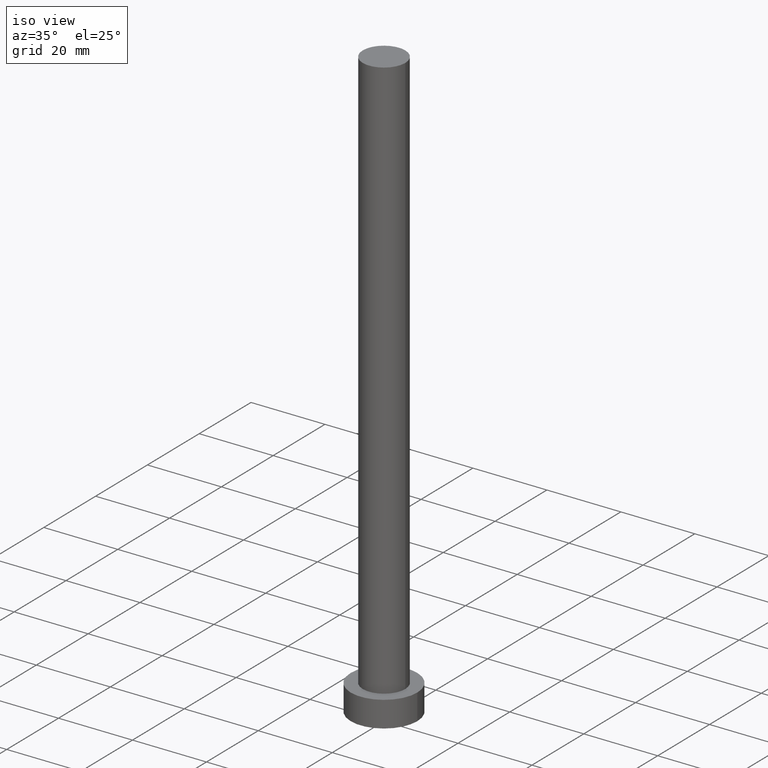
[diagram: clean part render]
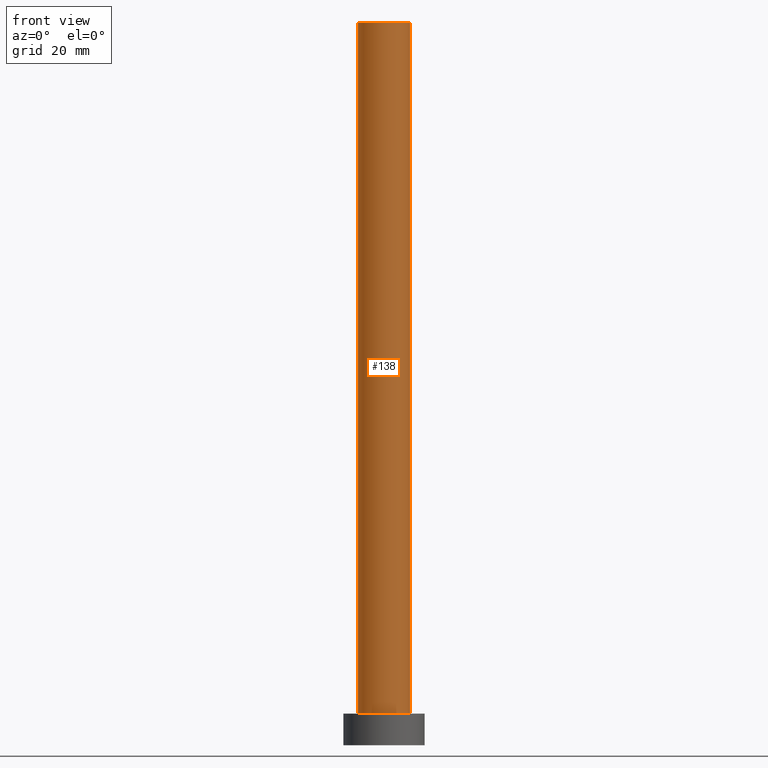
[diagram: tour spotlight — one face highlighted and labeled with its STEP entity id]
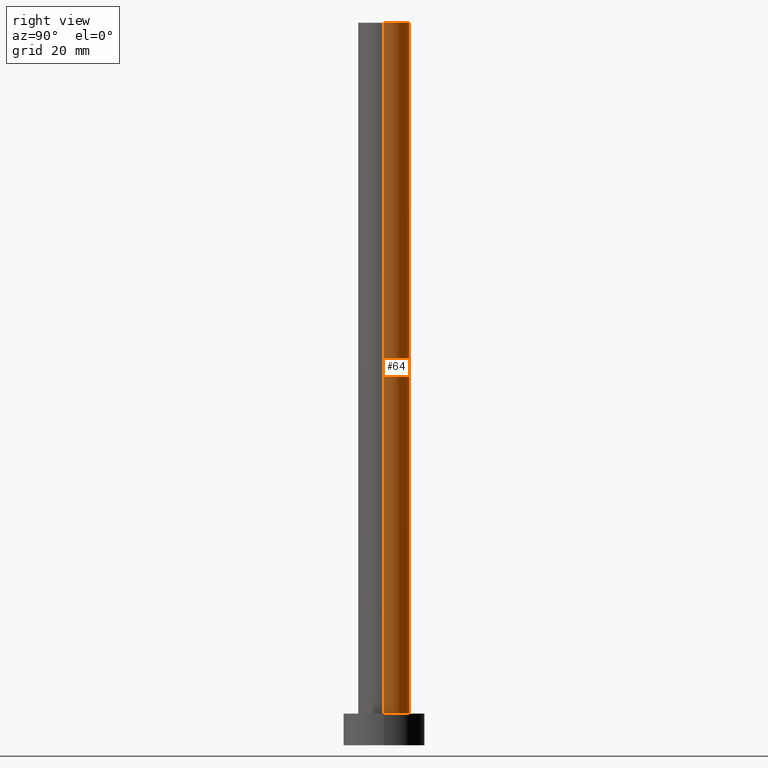
[diagram: tour spotlight — one face highlighted and labeled with its STEP entity id]
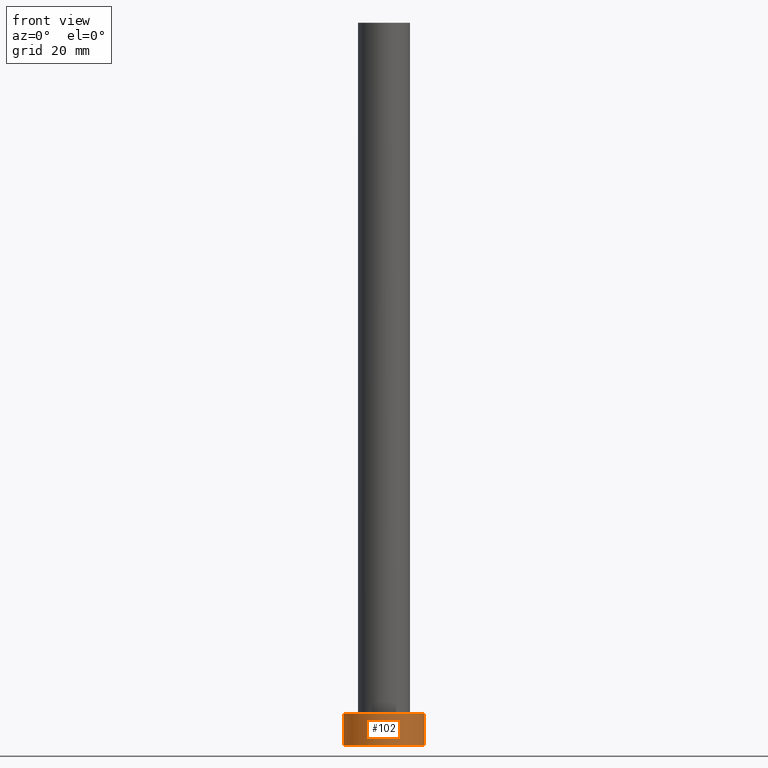
[diagram: tour spotlight — one face highlighted and labeled with its STEP entity id]
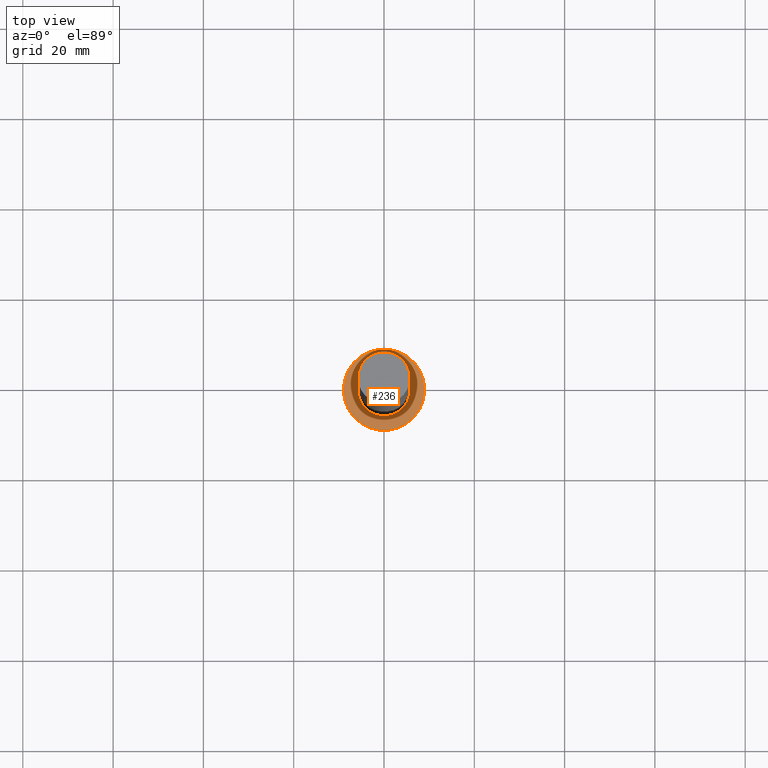
[diagram: tour spotlight — one face highlighted and labeled with its STEP entity id]
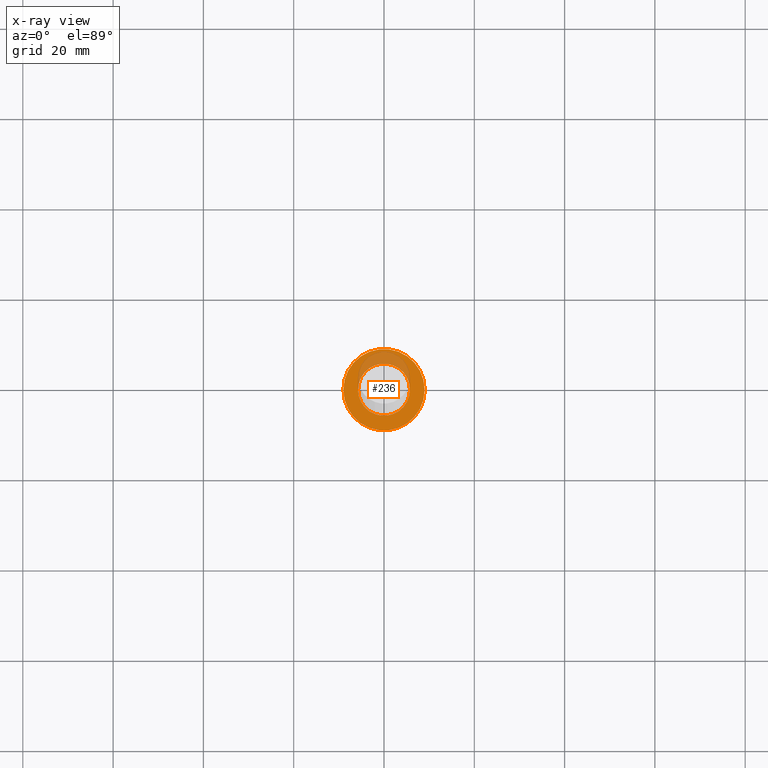
[diagram: x-ray of the same camera — body ghosted, this tour face saturated]
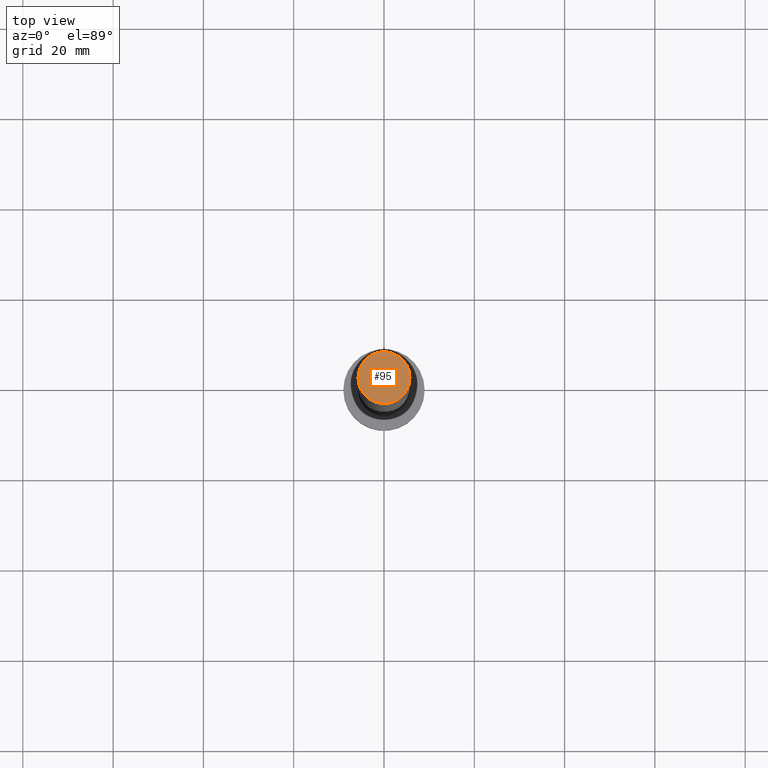
[diagram: tour spotlight — one face highlighted and labeled with its STEP entity id]
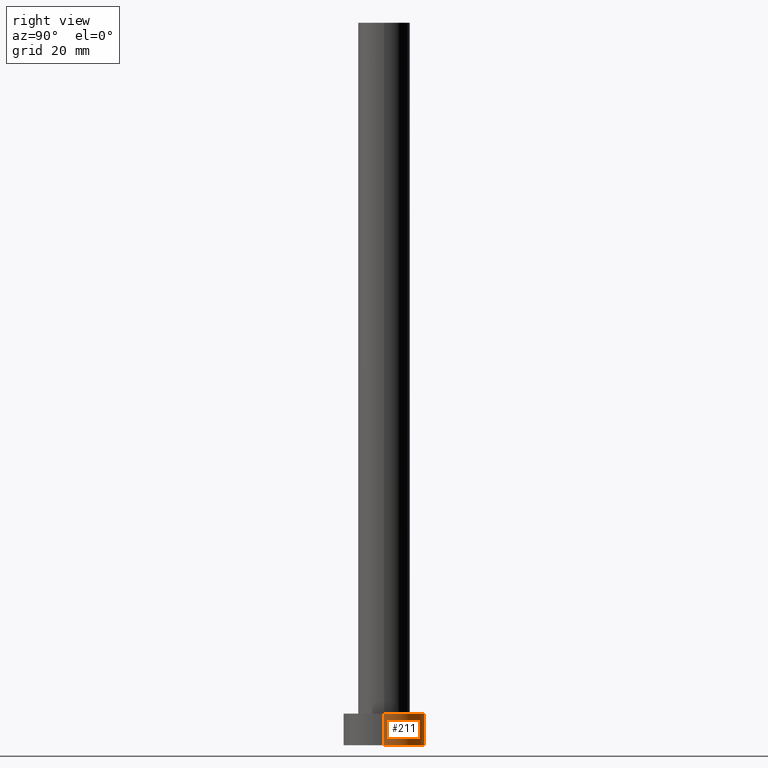
[diagram: tour spotlight — one face highlighted and labeled with its STEP entity id]
A machine part: a face-by-face anatomy tour. The part has 7 B-rep faces; the first image is the clean iso view, then the 6 largest visible faces are spotlighted one at a time (largest first), each with its STEP entity span.

Face 1 — front view, entity #138. In plain terms, the highlighted cylindrical surface (edge-blend (fillet) strip) has radius 5.75 mm, axis along (-0, -0, -1).
Definition (entity closure, byte-faithful):
#26 = EDGE_CURVE ( 'NONE', #112, #173, #100, .T. ) ;
#29 = CIRCLE ( 'NONE', #241, 5.750000000000000000 ) ;
#31 = CARTESIAN_POINT ( 'NONE',  ( 5.750000000000000000, 7.041719095097280880E-16, 7.000000000000000000 ) ) ;
#35 = CARTESIAN_POINT ( 'NONE',  ( -5.750000000000000000, 0.000000000000000000, 7.000000000000000000 ) ) ;
#37 = CARTESIAN_POINT ( 'NONE',  ( 5.750000000000000000, 7.041719095097280880E-16, 160.0000000000000000 ) ) ;
#40 = DIRECTION ( 'NONE',  ( 1.000000000000000000, 0.000000000000000000, 0.000000000000000000 ) ) ;
#43 = ORIENTED_EDGE ( 'NONE', *, *, #197, .F. ) ;
#55 = VECTOR ( 'NONE', #77, 1000.000000000000000 ) ;
#58 = VECTOR ( 'NONE', #145, 1000.000000000000000 ) ;
#71 = LINE ( 'NONE', #37, #58 ) ;
#77 = DIRECTION ( 'NONE',  ( -0.000000000000000000, -0.000000000000000000, -1.000000000000000000 ) ) ;
#79 = CYLINDRICAL_SURFACE ( 'NONE', #104, 5.750000000000000000 ) ;
#96 = CARTESIAN_POINT ( 'NONE',  ( -5.750000000000000000, 0.000000000000000000, 160.0000000000000000 ) ) ;
#100 = CIRCLE ( 'NONE', #220, 5.750000000000000000 ) ;
#104 = AXIS2_PLACEMENT_3D ( 'NONE', #229, #133, #206 ) ;
#108 = DIRECTION ( 'NONE',  ( 1.000000000000000000, 0.000000000000000000, 0.000000000000000000 ) ) ;
#112 = VERTEX_POINT ( 'NONE', #35 ) ;
#115 = FACE_OUTER_BOUND ( 'NONE', #140, .T. ) ;
#131 = DIRECTION ( 'NONE',  ( 0.000000000000000000, 0.000000000000000000, 1.000000000000000000 ) ) ;
#133 = DIRECTION ( 'NONE',  ( -0.000000000000000000, -0.000000000000000000, -1.000000000000000000 ) ) ;
#135 = VERTEX_POINT ( 'NONE', #96 ) ;
#136 = EDGE_CURVE ( 'NONE', #135, #112, #166, .T. ) ;
#138 = ADVANCED_FACE ( 'NONE', ( #115 ), #79, .T. ) ;
#140 = EDGE_LOOP ( 'NONE', ( #43, #159, #196, #141 ) ) ;
#141 = ORIENTED_EDGE ( 'NONE', *, *, #26, .T. ) ;
#145 = DIRECTION ( 'NONE',  ( -0.000000000000000000, -0.000000000000000000, -1.000000000000000000 ) ) ;
#147 = CARTESIAN_POINT ( 'NONE',  ( 0.000000000000000000, 0.000000000000000000, 160.0000000000000000 ) ) ;
#159 = ORIENTED_EDGE ( 'NONE', *, *, #187, .F. ) ;
#166 = LINE ( 'NONE', #253, #55 ) ;
#173 = VERTEX_POINT ( 'NONE', #31 ) ;
#181 = DIRECTION ( 'NONE',  ( 0.000000000000000000, 0.000000000000000000, 1.000000000000000000 ) ) ;
#187 = EDGE_CURVE ( 'NONE', #135, #233, #29, .T. ) ;
#196 = ORIENTED_EDGE ( 'NONE', *, *, #136, .T. ) ;
#197 = EDGE_CURVE ( 'NONE', #233, #173, #71, .T. ) ;
#206 = DIRECTION ( 'NONE',  ( -1.000000000000000000, 0.000000000000000000, 0.000000000000000000 ) ) ;
#220 = AXIS2_PLACEMENT_3D ( 'NONE', #228, #131, #40 ) ;
#228 = CARTESIAN_POINT ( 'NONE',  ( 0.000000000000000000, 0.000000000000000000, 7.000000000000000000 ) ) ;
#229 = CARTESIAN_POINT ( 'NONE',  ( 0.000000000000000000, 0.000000000000000000, 160.0000000000000000 ) ) ;
#231 = CARTESIAN_POINT ( 'NONE',  ( 5.750000000000000000, 7.041719095097280880E-16, 160.0000000000000000 ) ) ;
#233 = VERTEX_POINT ( 'NONE', #231 ) ;
#241 = AXIS2_PLACEMENT_3D ( 'NONE', #147, #181, #108 ) ;
#253 = CARTESIAN_POINT ( 'NONE',  ( -5.750000000000000000, 0.000000000000000000, 160.0000000000000000 ) ) ;

Face 2 — right view, entity #64. In plain terms, the highlighted cylindrical surface (edge-blend (fillet) strip) has radius 5.75 mm, axis along (-0, -0, -1).
Definition (entity closure, byte-faithful):
#2 = DIRECTION ( 'NONE',  ( 1.000000000000000000, 0.000000000000000000, 0.000000000000000000 ) ) ;
#3 = DIRECTION ( 'NONE',  ( 1.000000000000000000, 0.000000000000000000, 0.000000000000000000 ) ) ;
#21 = DIRECTION ( 'NONE',  ( 0.000000000000000000, 0.000000000000000000, 1.000000000000000000 ) ) ;
#31 = CARTESIAN_POINT ( 'NONE',  ( 5.750000000000000000, 7.041719095097280880E-16, 7.000000000000000000 ) ) ;
#35 = CARTESIAN_POINT ( 'NONE',  ( -5.750000000000000000, 0.000000000000000000, 7.000000000000000000 ) ) ;
#37 = CARTESIAN_POINT ( 'NONE',  ( 5.750000000000000000, 7.041719095097280880E-16, 160.0000000000000000 ) ) ;
#38 = CARTESIAN_POINT ( 'NONE',  ( 0.000000000000000000, 0.000000000000000000, 7.000000000000000000 ) ) ;
#39 = AXIS2_PLACEMENT_3D ( 'NONE', #110, #48, #180 ) ;
#48 = DIRECTION ( 'NONE',  ( -0.000000000000000000, -0.000000000000000000, -1.000000000000000000 ) ) ;
#55 = VECTOR ( 'NONE', #77, 1000.000000000000000 ) ;
#58 = VECTOR ( 'NONE', #145, 1000.000000000000000 ) ;
#59 = FACE_OUTER_BOUND ( 'NONE', #105, .T. ) ;
#64 = ADVANCED_FACE ( 'NONE', ( #59 ), #210, .T. ) ;
#71 = LINE ( 'NONE', #37, #58 ) ;
#77 = DIRECTION ( 'NONE',  ( -0.000000000000000000, -0.000000000000000000, -1.000000000000000000 ) ) ;
#82 = CARTESIAN_POINT ( 'NONE',  ( 0.000000000000000000, 0.000000000000000000, 160.0000000000000000 ) ) ;
#83 = ORIENTED_EDGE ( 'NONE', *, *, #136, .F. ) ;
#96 = CARTESIAN_POINT ( 'NONE',  ( -5.750000000000000000, 0.000000000000000000, 160.0000000000000000 ) ) ;
#105 = EDGE_LOOP ( 'NONE', ( #123, #191, #218, #83 ) ) ;
#110 = CARTESIAN_POINT ( 'NONE',  ( 0.000000000000000000, 0.000000000000000000, 160.0000000000000000 ) ) ;
#112 = VERTEX_POINT ( 'NONE', #35 ) ;
#117 = DIRECTION ( 'NONE',  ( 0.000000000000000000, 0.000000000000000000, 1.000000000000000000 ) ) ;
#123 = ORIENTED_EDGE ( 'NONE', *, *, #222, .F. ) ;
#130 = AXIS2_PLACEMENT_3D ( 'NONE', #82, #21, #2 ) ;
#134 = AXIS2_PLACEMENT_3D ( 'NONE', #38, #117, #3 ) ;
#135 = VERTEX_POINT ( 'NONE', #96 ) ;
#136 = EDGE_CURVE ( 'NONE', #135, #112, #166, .T. ) ;
#143 = EDGE_CURVE ( 'NONE', #173, #112, #214, .T. ) ;
#145 = DIRECTION ( 'NONE',  ( -0.000000000000000000, -0.000000000000000000, -1.000000000000000000 ) ) ;
#166 = LINE ( 'NONE', #253, #55 ) ;
#173 = VERTEX_POINT ( 'NONE', #31 ) ;
#180 = DIRECTION ( 'NONE',  ( -1.000000000000000000, 0.000000000000000000, 0.000000000000000000 ) ) ;
#191 = ORIENTED_EDGE ( 'NONE', *, *, #197, .T. ) ;
#197 = EDGE_CURVE ( 'NONE', #233, #173, #71, .T. ) ;
#210 = CYLINDRICAL_SURFACE ( 'NONE', #39, 5.750000000000000000 ) ;
#214 = CIRCLE ( 'NONE', #134, 5.750000000000000000 ) ;
#218 = ORIENTED_EDGE ( 'NONE', *, *, #143, .T. ) ;
#222 = EDGE_CURVE ( 'NONE', #233, #135, #245, .T. ) ;
#231 = CARTESIAN_POINT ( 'NONE',  ( 5.750000000000000000, 7.041719095097280880E-16, 160.0000000000000000 ) ) ;
#233 = VERTEX_POINT ( 'NONE', #231 ) ;
#245 = CIRCLE ( 'NONE', #130, 5.750000000000000000 ) ;
#253 = CARTESIAN_POINT ( 'NONE',  ( -5.750000000000000000, 0.000000000000000000, 160.0000000000000000 ) ) ;

Face 3 — front view, entity #102. In plain terms, the highlighted cylindrical surface (partial cylindrical patch) has radius 9 mm, axis along (-0, -0, -1).
Definition (entity closure, byte-faithful):
#12 = ORIENTED_EDGE ( 'NONE', *, *, #189, .F. ) ;
#19 = CYLINDRICAL_SURFACE ( 'NONE', #188, 9.000000000000000000 ) ;
#22 = DIRECTION ( 'NONE',  ( -1.000000000000000000, 0.000000000000000000, 0.000000000000000000 ) ) ;
#33 = FACE_OUTER_BOUND ( 'NONE', #246, .T. ) ;
#36 = DIRECTION ( 'NONE',  ( 0.000000000000000000, 0.000000000000000000, 1.000000000000000000 ) ) ;
#41 = DIRECTION ( 'NONE',  ( 1.000000000000000000, 0.000000000000000000, 0.000000000000000000 ) ) ;
#44 = CIRCLE ( 'NONE', #169, 9.000000000000000000 ) ;
#45 = EDGE_CURVE ( 'NONE', #174, #107, #192, .T. ) ;
#57 = CARTESIAN_POINT ( 'NONE',  ( 9.000000000000000000, 1.102182119232617714E-15, 0.000000000000000000 ) ) ;
#62 = LINE ( 'NONE', #125, #94 ) ;
#63 = DIRECTION ( 'NONE',  ( -0.000000000000000000, -0.000000000000000000, -1.000000000000000000 ) ) ;
#66 = CARTESIAN_POINT ( 'NONE',  ( 0.000000000000000000, 0.000000000000000000, 0.000000000000000000 ) ) ;
#67 = VERTEX_POINT ( 'NONE', #57 ) ;
#69 = VECTOR ( 'NONE', #213, 1000.000000000000000 ) ;
#78 = DIRECTION ( 'NONE',  ( -0.000000000000000000, -0.000000000000000000, -1.000000000000000000 ) ) ;
#92 = LINE ( 'NONE', #200, #69 ) ;
#94 = VECTOR ( 'NONE', #78, 1000.000000000000000 ) ;
#97 = CARTESIAN_POINT ( 'NONE',  ( 0.000000000000000000, 0.000000000000000000, 7.000000000000000000 ) ) ;
#101 = VERTEX_POINT ( 'NONE', #225 ) ;
#102 = ADVANCED_FACE ( 'NONE', ( #33 ), #19, .T. ) ;
#107 = VERTEX_POINT ( 'NONE', #255 ) ;
#116 = DIRECTION ( 'NONE',  ( 1.000000000000000000, 0.000000000000000000, 0.000000000000000000 ) ) ;
#119 = ORIENTED_EDGE ( 'NONE', *, *, #45, .F. ) ;
#125 = CARTESIAN_POINT ( 'NONE',  ( -9.000000000000000000, 0.000000000000000000, 7.000000000000000000 ) ) ;
#150 = CARTESIAN_POINT ( 'NONE',  ( -9.000000000000000000, 0.000000000000000000, 7.000000000000000000 ) ) ;
#169 = AXIS2_PLACEMENT_3D ( 'NONE', #66, #216, #41 ) ;
#174 = VERTEX_POINT ( 'NONE', #150 ) ;
#182 = EDGE_CURVE ( 'NONE', #174, #101, #62, .T. ) ;
#188 = AXIS2_PLACEMENT_3D ( 'NONE', #97, #63, #22 ) ;
#189 = EDGE_CURVE ( 'NONE', #107, #67, #92, .T. ) ;
#192 = CIRCLE ( 'NONE', #251, 9.000000000000000000 ) ;
#200 = CARTESIAN_POINT ( 'NONE',  ( 9.000000000000000000, 1.102182119232617714E-15, 7.000000000000000000 ) ) ;
#208 = EDGE_CURVE ( 'NONE', #101, #67, #44, .T. ) ;
#212 = CARTESIAN_POINT ( 'NONE',  ( 0.000000000000000000, 0.000000000000000000, 7.000000000000000000 ) ) ;
#213 = DIRECTION ( 'NONE',  ( -0.000000000000000000, -0.000000000000000000, -1.000000000000000000 ) ) ;
#216 = DIRECTION ( 'NONE',  ( 0.000000000000000000, 0.000000000000000000, 1.000000000000000000 ) ) ;
#225 = CARTESIAN_POINT ( 'NONE',  ( -9.000000000000000000, 0.000000000000000000, 0.000000000000000000 ) ) ;
#237 = ORIENTED_EDGE ( 'NONE', *, *, #208, .T. ) ;
#239 = ORIENTED_EDGE ( 'NONE', *, *, #182, .T. ) ;
#246 = EDGE_LOOP ( 'NONE', ( #12, #119, #239, #237 ) ) ;
#251 = AXIS2_PLACEMENT_3D ( 'NONE', #212, #36, #116 ) ;
#255 = CARTESIAN_POINT ( 'NONE',  ( 9.000000000000000000, 1.102182119232617714E-15, 7.000000000000000000 ) ) ;

Face 4 — top view, entity #236. An x-ray twin of the same camera follows (body ghosted, this face saturated) — the face is partly hidden behind the body. In plain terms, the highlighted planar face has unit normal (0, 0, 1).
Definition (entity closure, byte-faithful):
#1 = AXIS2_PLACEMENT_3D ( 'NONE', #76, #230, #186 ) ;
#3 = DIRECTION ( 'NONE',  ( 1.000000000000000000, 0.000000000000000000, 0.000000000000000000 ) ) ;
#4 = EDGE_LOOP ( 'NONE', ( #122, #171 ) ) ;
#10 = EDGE_CURVE ( 'NONE', #107, #174, #178, .T. ) ;
#25 = FACE_OUTER_BOUND ( 'NONE', #242, .T. ) ;
#26 = EDGE_CURVE ( 'NONE', #112, #173, #100, .T. ) ;
#31 = CARTESIAN_POINT ( 'NONE',  ( 5.750000000000000000, 7.041719095097280880E-16, 7.000000000000000000 ) ) ;
#35 = CARTESIAN_POINT ( 'NONE',  ( -5.750000000000000000, 0.000000000000000000, 7.000000000000000000 ) ) ;
#36 = DIRECTION ( 'NONE',  ( 0.000000000000000000, 0.000000000000000000, 1.000000000000000000 ) ) ;
#38 = CARTESIAN_POINT ( 'NONE',  ( 0.000000000000000000, 0.000000000000000000, 7.000000000000000000 ) ) ;
#40 = DIRECTION ( 'NONE',  ( 1.000000000000000000, 0.000000000000000000, 0.000000000000000000 ) ) ;
#45 = EDGE_CURVE ( 'NONE', #174, #107, #192, .T. ) ;
#76 = CARTESIAN_POINT ( 'NONE',  ( 0.000000000000000000, 0.000000000000000000, 7.000000000000000000 ) ) ;
#80 = FACE_BOUND ( 'NONE', #4, .T. ) ;
#99 = ORIENTED_EDGE ( 'NONE', *, *, #10, .T. ) ;
#100 = CIRCLE ( 'NONE', #220, 5.750000000000000000 ) ;
#107 = VERTEX_POINT ( 'NONE', #255 ) ;
#112 = VERTEX_POINT ( 'NONE', #35 ) ;
#116 = DIRECTION ( 'NONE',  ( 1.000000000000000000, 0.000000000000000000, 0.000000000000000000 ) ) ;
#117 = DIRECTION ( 'NONE',  ( 0.000000000000000000, 0.000000000000000000, 1.000000000000000000 ) ) ;
#122 = ORIENTED_EDGE ( 'NONE', *, *, #26, .F. ) ;
#131 = DIRECTION ( 'NONE',  ( 0.000000000000000000, 0.000000000000000000, 1.000000000000000000 ) ) ;
#134 = AXIS2_PLACEMENT_3D ( 'NONE', #38, #117, #3 ) ;
#143 = EDGE_CURVE ( 'NONE', #173, #112, #214, .T. ) ;
#150 = CARTESIAN_POINT ( 'NONE',  ( -9.000000000000000000, 0.000000000000000000, 7.000000000000000000 ) ) ;
#171 = ORIENTED_EDGE ( 'NONE', *, *, #143, .F. ) ;
#173 = VERTEX_POINT ( 'NONE', #31 ) ;
#174 = VERTEX_POINT ( 'NONE', #150 ) ;
#178 = CIRCLE ( 'NONE', #1, 9.000000000000000000 ) ;
#186 = DIRECTION ( 'NONE',  ( 1.000000000000000000, 0.000000000000000000, 0.000000000000000000 ) ) ;
#192 = CIRCLE ( 'NONE', #251, 9.000000000000000000 ) ;
#193 = DIRECTION ( 'NONE',  ( 1.000000000000000000, 0.000000000000000000, -0.000000000000000000 ) ) ;
#199 = PLANE ( 'NONE',  #254 ) ;
#212 = CARTESIAN_POINT ( 'NONE',  ( 0.000000000000000000, 0.000000000000000000, 7.000000000000000000 ) ) ;
#214 = CIRCLE ( 'NONE', #134, 5.750000000000000000 ) ;
#220 = AXIS2_PLACEMENT_3D ( 'NONE', #228, #131, #40 ) ;
#228 = CARTESIAN_POINT ( 'NONE',  ( 0.000000000000000000, 0.000000000000000000, 7.000000000000000000 ) ) ;
#230 = DIRECTION ( 'NONE',  ( 0.000000000000000000, 0.000000000000000000, 1.000000000000000000 ) ) ;
#236 = ADVANCED_FACE ( 'NONE', ( #80, #25 ), #199, .T. ) ;
#242 = EDGE_LOOP ( 'NONE', ( #248, #99 ) ) ;
#248 = ORIENTED_EDGE ( 'NONE', *, *, #45, .T. ) ;
#249 = CARTESIAN_POINT ( 'NONE',  ( 0.000000000000000000, 0.000000000000000000, 7.000000000000000000 ) ) ;
#251 = AXIS2_PLACEMENT_3D ( 'NONE', #212, #36, #116 ) ;
#252 = DIRECTION ( 'NONE',  ( 0.000000000000000000, 0.000000000000000000, 1.000000000000000000 ) ) ;
#254 = AXIS2_PLACEMENT_3D ( 'NONE', #249, #252, #193 ) ;
#255 = CARTESIAN_POINT ( 'NONE',  ( 9.000000000000000000, 1.102182119232617714E-15, 7.000000000000000000 ) ) ;

Face 5 — top view, entity #95. In plain terms, the highlighted planar face has unit normal (0, 0, 1).
Definition (entity closure, byte-faithful):
#2 = DIRECTION ( 'NONE',  ( 1.000000000000000000, 0.000000000000000000, 0.000000000000000000 ) ) ;
#8 = ORIENTED_EDGE ( 'NONE', *, *, #187, .T. ) ;
#21 = DIRECTION ( 'NONE',  ( 0.000000000000000000, 0.000000000000000000, 1.000000000000000000 ) ) ;
#29 = CIRCLE ( 'NONE', #241, 5.750000000000000000 ) ;
#34 = CARTESIAN_POINT ( 'NONE',  ( 0.000000000000000000, 0.000000000000000000, 160.0000000000000000 ) ) ;
#72 = EDGE_LOOP ( 'NONE', ( #8, #146 ) ) ;
#82 = CARTESIAN_POINT ( 'NONE',  ( 0.000000000000000000, 0.000000000000000000, 160.0000000000000000 ) ) ;
#95 = ADVANCED_FACE ( 'NONE', ( #203 ), #165, .T. ) ;
#96 = CARTESIAN_POINT ( 'NONE',  ( -5.750000000000000000, 0.000000000000000000, 160.0000000000000000 ) ) ;
#108 = DIRECTION ( 'NONE',  ( 1.000000000000000000, 0.000000000000000000, 0.000000000000000000 ) ) ;
#130 = AXIS2_PLACEMENT_3D ( 'NONE', #82, #21, #2 ) ;
#135 = VERTEX_POINT ( 'NONE', #96 ) ;
#146 = ORIENTED_EDGE ( 'NONE', *, *, #222, .T. ) ;
#147 = CARTESIAN_POINT ( 'NONE',  ( 0.000000000000000000, 0.000000000000000000, 160.0000000000000000 ) ) ;
#165 = PLANE ( 'NONE',  #238 ) ;
#181 = DIRECTION ( 'NONE',  ( 0.000000000000000000, 0.000000000000000000, 1.000000000000000000 ) ) ;
#184 = DIRECTION ( 'NONE',  ( 1.000000000000000000, 0.000000000000000000, -0.000000000000000000 ) ) ;
#187 = EDGE_CURVE ( 'NONE', #135, #233, #29, .T. ) ;
#203 = FACE_OUTER_BOUND ( 'NONE', #72, .T. ) ;
#222 = EDGE_CURVE ( 'NONE', #233, #135, #245, .T. ) ;
#227 = DIRECTION ( 'NONE',  ( 0.000000000000000000, 0.000000000000000000, 1.000000000000000000 ) ) ;
#231 = CARTESIAN_POINT ( 'NONE',  ( 5.750000000000000000, 7.041719095097280880E-16, 160.0000000000000000 ) ) ;
#233 = VERTEX_POINT ( 'NONE', #231 ) ;
#238 = AXIS2_PLACEMENT_3D ( 'NONE', #34, #227, #184 ) ;
#241 = AXIS2_PLACEMENT_3D ( 'NONE', #147, #181, #108 ) ;
#245 = CIRCLE ( 'NONE', #130, 5.750000000000000000 ) ;

Face 6 — right view, entity #211. In plain terms, the highlighted cylindrical surface (partial cylindrical patch) has radius 9 mm, axis along (-0, -0, -1).
Definition (entity closure, byte-faithful):
#1 = AXIS2_PLACEMENT_3D ( 'NONE', #76, #230, #186 ) ;
#6 = EDGE_CURVE ( 'NONE', #67, #101, #168, .T. ) ;
#7 = DIRECTION ( 'NONE',  ( -0.000000000000000000, -0.000000000000000000, -1.000000000000000000 ) ) ;
#9 = DIRECTION ( 'NONE',  ( -1.000000000000000000, 0.000000000000000000, 0.000000000000000000 ) ) ;
#10 = EDGE_CURVE ( 'NONE', #107, #174, #178, .T. ) ;
#11 = ORIENTED_EDGE ( 'NONE', *, *, #6, .T. ) ;
#14 = AXIS2_PLACEMENT_3D ( 'NONE', #198, #54, #87 ) ;
#54 = DIRECTION ( 'NONE',  ( 0.000000000000000000, 0.000000000000000000, 1.000000000000000000 ) ) ;
#57 = CARTESIAN_POINT ( 'NONE',  ( 9.000000000000000000, 1.102182119232617714E-15, 0.000000000000000000 ) ) ;
#62 = LINE ( 'NONE', #125, #94 ) ;
#67 = VERTEX_POINT ( 'NONE', #57 ) ;
#68 = ORIENTED_EDGE ( 'NONE', *, *, #10, .F. ) ;
#69 = VECTOR ( 'NONE', #213, 1000.000000000000000 ) ;
#76 = CARTESIAN_POINT ( 'NONE',  ( 0.000000000000000000, 0.000000000000000000, 7.000000000000000000 ) ) ;
#78 = DIRECTION ( 'NONE',  ( -0.000000000000000000, -0.000000000000000000, -1.000000000000000000 ) ) ;
#81 = FACE_OUTER_BOUND ( 'NONE', #121, .T. ) ;
#87 = DIRECTION ( 'NONE',  ( 1.000000000000000000, 0.000000000000000000, 0.000000000000000000 ) ) ;
#92 = LINE ( 'NONE', #200, #69 ) ;
#94 = VECTOR ( 'NONE', #78, 1000.000000000000000 ) ;
#98 = AXIS2_PLACEMENT_3D ( 'NONE', #156, #7, #9 ) ;
#101 = VERTEX_POINT ( 'NONE', #225 ) ;
#107 = VERTEX_POINT ( 'NONE', #255 ) ;
#121 = EDGE_LOOP ( 'NONE', ( #68, #172, #11, #217 ) ) ;
#125 = CARTESIAN_POINT ( 'NONE',  ( -9.000000000000000000, 0.000000000000000000, 7.000000000000000000 ) ) ;
#150 = CARTESIAN_POINT ( 'NONE',  ( -9.000000000000000000, 0.000000000000000000, 7.000000000000000000 ) ) ;
#154 = CYLINDRICAL_SURFACE ( 'NONE', #98, 9.000000000000000000 ) ;
#156 = CARTESIAN_POINT ( 'NONE',  ( 0.000000000000000000, 0.000000000000000000, 7.000000000000000000 ) ) ;
#168 = CIRCLE ( 'NONE', #14, 9.000000000000000000 ) ;
#172 = ORIENTED_EDGE ( 'NONE', *, *, #189, .T. ) ;
#174 = VERTEX_POINT ( 'NONE', #150 ) ;
#178 = CIRCLE ( 'NONE', #1, 9.000000000000000000 ) ;
#182 = EDGE_CURVE ( 'NONE', #174, #101, #62, .T. ) ;
#186 = DIRECTION ( 'NONE',  ( 1.000000000000000000, 0.000000000000000000, 0.000000000000000000 ) ) ;
#189 = EDGE_CURVE ( 'NONE', #107, #67, #92, .T. ) ;
#198 = CARTESIAN_POINT ( 'NONE',  ( 0.000000000000000000, 0.000000000000000000, 0.000000000000000000 ) ) ;
#200 = CARTESIAN_POINT ( 'NONE',  ( 9.000000000000000000, 1.102182119232617714E-15, 7.000000000000000000 ) ) ;
#211 = ADVANCED_FACE ( 'NONE', ( #81 ), #154, .T. ) ;
#213 = DIRECTION ( 'NONE',  ( -0.000000000000000000, -0.000000000000000000, -1.000000000000000000 ) ) ;
#217 = ORIENTED_EDGE ( 'NONE', *, *, #182, .F. ) ;
#225 = CARTESIAN_POINT ( 'NONE',  ( -9.000000000000000000, 0.000000000000000000, 0.000000000000000000 ) ) ;
#230 = DIRECTION ( 'NONE',  ( 0.000000000000000000, 0.000000000000000000, 1.000000000000000000 ) ) ;
#255 = CARTESIAN_POINT ( 'NONE',  ( 9.000000000000000000, 1.102182119232617714E-15, 7.000000000000000000 ) ) ;